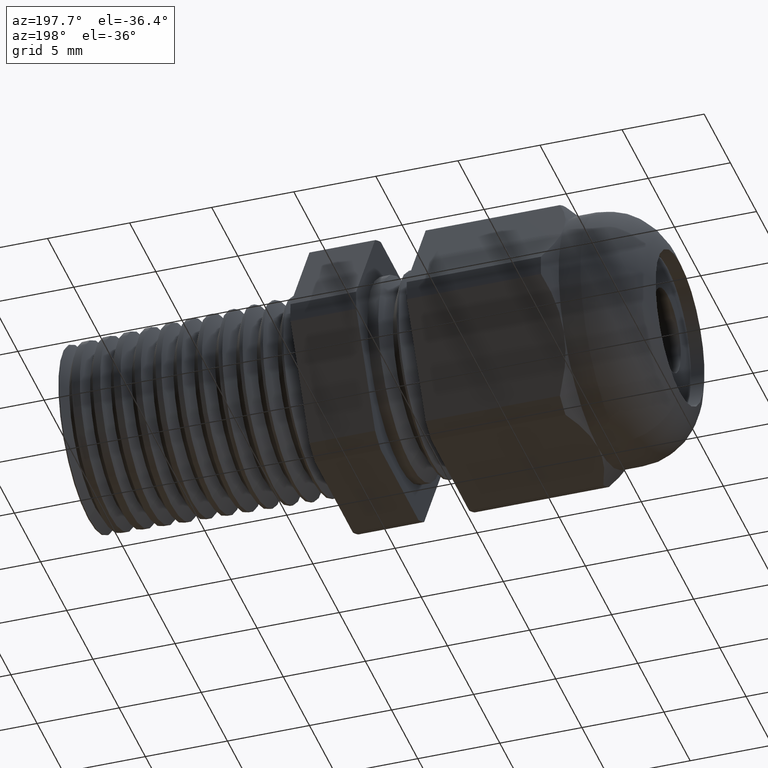
[diagram: clean part render]
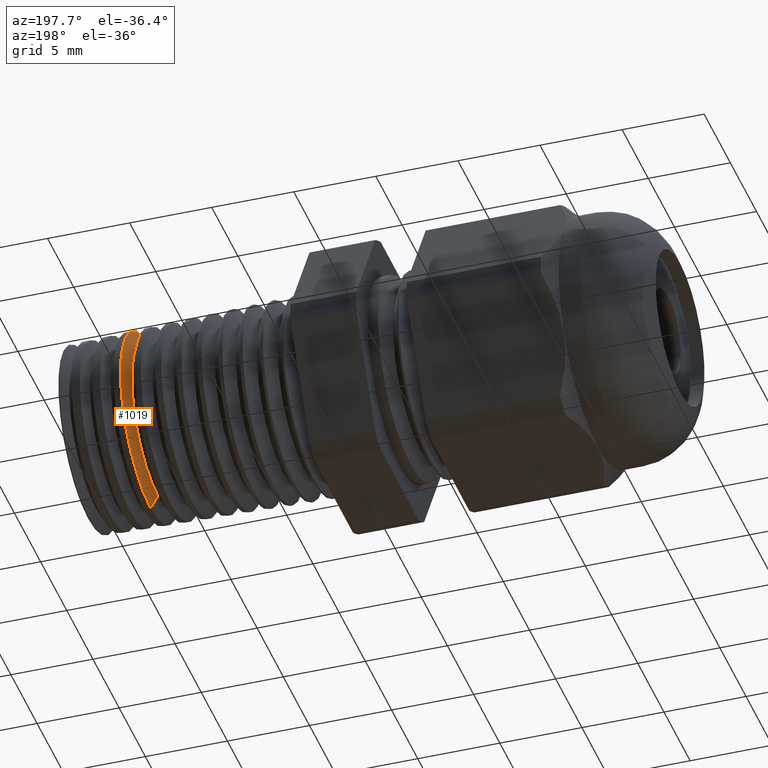
[diagram: same view with one face highlighted and labeled with its STEP entity id]
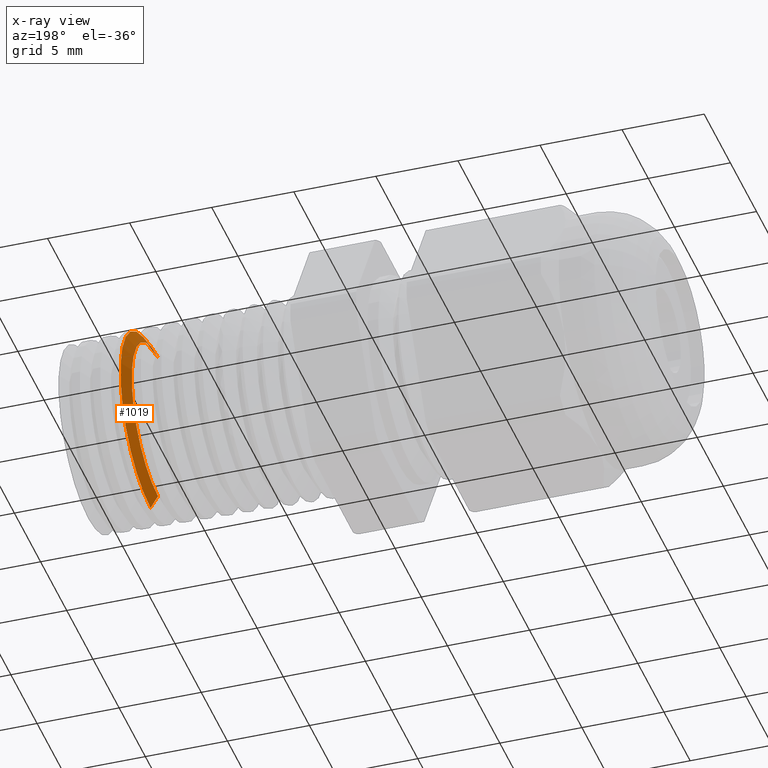
[diagram: x-ray of the same camera — body ghosted, the highlighted face saturated]
A machine part, auxiliary view. The second image highlights one B-rep face of the part: STEP entity #1019.
The next image is the same camera in x-ray: the body ghosted, the highlighted face saturated — about 1% of this face is hidden behind the body in this view.
In plain terms, the highlighted conical surface has half-angle 58.5 deg.
Its self-contained STEP definition (entity closure, byte-faithful):
#990 = EDGE_LOOP ( 'NONE', ( #1020, #1024, #1027, #1030 ) ) ;
#1019 = ADVANCED_FACE ( 'NONE', ( #3021 ), #3020, .T. ) ;
#1020 = ORIENTED_EDGE ( 'NONE', *, *, #1021, .T. ) ;
#1021 = EDGE_CURVE ( 'NONE', #1022, #1023, #3014, .T. ) ;
#1022 = VERTEX_POINT ( 'NONE', #3010 ) ;
#1023 = VERTEX_POINT ( 'NONE', #3009 ) ;
#1024 = ORIENTED_EDGE ( 'NONE', *, *, #1025, .T. ) ;
#1025 = EDGE_CURVE ( 'NONE', #1023, #1026, #3008, .T. ) ;
#1026 = VERTEX_POINT ( 'NONE', #3004 ) ;
#1027 = ORIENTED_EDGE ( 'NONE', *, *, #1028, .T. ) ;
#1028 = EDGE_CURVE ( 'NONE', #1026, #1029, #3003, .T. ) ;
#1029 = VERTEX_POINT ( 'NONE', #2998 ) ;
#1030 = ORIENTED_EDGE ( 'NONE', *, *, #1031, .F. ) ;
#1031 = EDGE_CURVE ( 'NONE', #1022, #1029, #2997, .T. ) ;
#2994 = DIRECTION ( 'NONE',  ( 0.5224985647159503500, 0.0000000000000000000, -0.8526401643540911800 ) ) ;
#2995 = VECTOR ( 'NONE', #2994, 39.37007874015748900 ) ;
#2996 = CARTESIAN_POINT ( 'NONE',  ( 0.1120390190945657200, 0.0000000000000000000, -0.1971080464893451000 ) ) ;
#2997 = LINE ( 'NONE', #2996, #2995 ) ;
#2998 = CARTESIAN_POINT ( 'NONE',  ( 0.1298548653196456600, 2.769916726070331900E-017, -0.2261808652093693900 ) ) ;
#2999 = DIRECTION ( 'NONE',  ( 0.0000000000000000000, 0.0000000000000000000, -1.000000000000000000 ) ) ;
#3000 = DIRECTION ( 'NONE',  ( -1.000000000000000000, 0.0000000000000000000, 0.0000000000000000000 ) ) ;
#3001 = CARTESIAN_POINT ( 'NONE',  ( 0.1298548653196456600, 0.0000000000000000000, 0.0000000000000000000 ) ) ;
#3002 = AXIS2_PLACEMENT_3D ( 'NONE', #3001, #3000, #2999 ) ;
#3003 = CIRCLE ( 'NONE', #3002, 0.2261808652093693900 ) ;
#3004 = CARTESIAN_POINT ( 'NONE',  ( 0.1298548653196456600, 0.0000000000000000000, 0.2261808652093693900 ) ) ;
#3005 = DIRECTION ( 'NONE',  ( 0.5224985647159503500, 1.044183048100710800E-016, 0.8526401643540911800 ) ) ;
#3006 = VECTOR ( 'NONE', #3005, 39.37007874015748900 ) ;
#3007 = CARTESIAN_POINT ( 'NONE',  ( 0.1120390190945657200, 2.413877382193641800E-017, 0.1971080464893451000 ) ) ;
#3008 = LINE ( 'NONE', #3007, #3006 ) ;
#3009 = CARTESIAN_POINT ( 'NONE',  ( 0.1120390190945657200, 0.0000000000000000000, 0.1971080464893451000 ) ) ;
#3010 = CARTESIAN_POINT ( 'NONE',  ( 0.1120390190945657200, 2.597362444979066100E-017, -0.1971080464893451000 ) ) ;
#3011 = DIRECTION ( 'NONE',  ( 0.0000000000000000000, 0.0000000000000000000, -1.000000000000000000 ) ) ;
#3012 = DIRECTION ( 'NONE',  ( 1.000000000000000000, 0.0000000000000000000, 0.0000000000000000000 ) ) ;
#3013 = AXIS2_PLACEMENT_3D ( 'NONE', #3019, #3012, #3011 ) ;
#3014 = CIRCLE ( 'NONE', #3013, 0.1971080464893451000 ) ;
#3015 = DIRECTION ( 'NONE',  ( 0.0000000000000000000, 0.0000000000000000000, -1.000000000000000000 ) ) ;
#3016 = DIRECTION ( 'NONE',  ( 1.000000000000000000, 0.0000000000000000000, 0.0000000000000000000 ) ) ;
#3017 = CARTESIAN_POINT ( 'NONE',  ( 0.1120390190945657200, 0.0000000000000000000, 0.0000000000000000000 ) ) ;
#3018 = AXIS2_PLACEMENT_3D ( 'NONE', #3017, #3016, #3015 ) ;
#3019 = CARTESIAN_POINT ( 'NONE',  ( 0.1120390190945657200, 0.0000000000000000000, 0.0000000000000000000 ) ) ;
#3020 = CONICAL_SURFACE ( 'NONE', #3018, 0.1971080464893451000, 1.021017612416681000 ) ;
#3021 = FACE_OUTER_BOUND ( 'NONE', #990, .T. ) ;